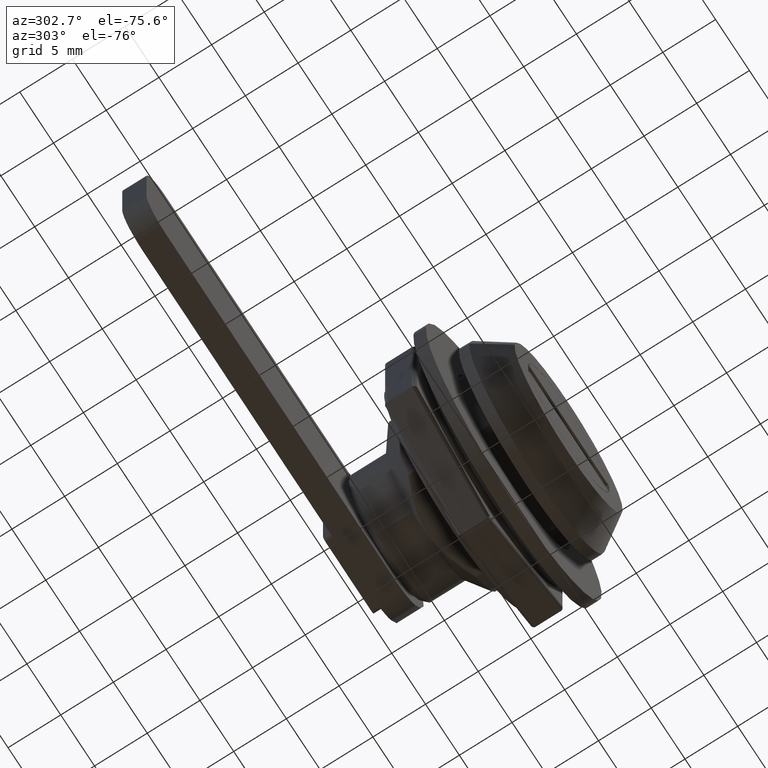
[diagram: clean part render]
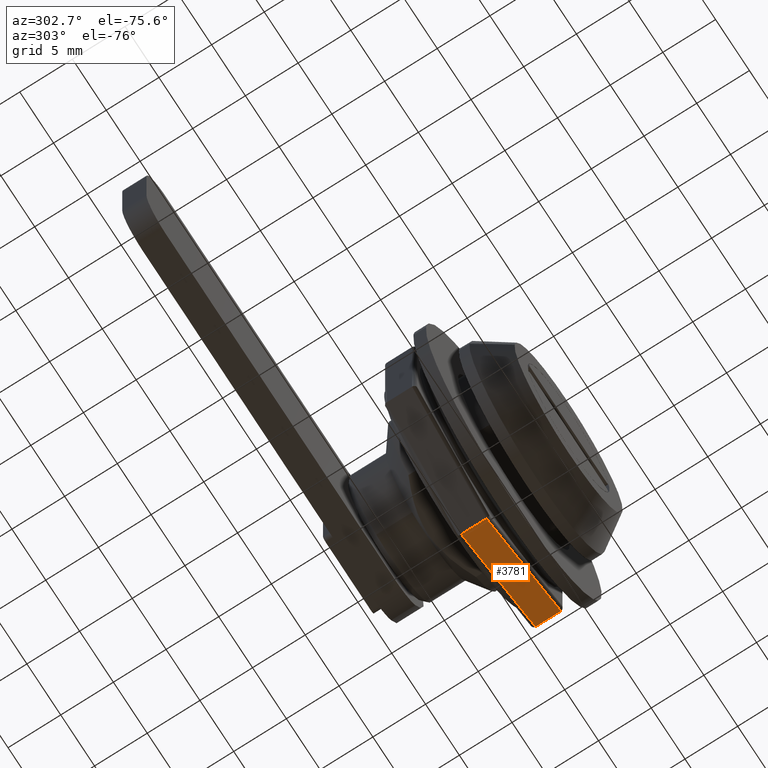
[diagram: same view with one face highlighted and labeled with its STEP entity id]
A machine part, auxiliary view. The second image highlights one B-rep face of the part: STEP entity #3781.
In plain terms, the highlighted face is a freeform B-spline surface patch.
Its self-contained STEP definition (entity closure, byte-faithful):
#3257=CARTESIAN_POINT('',(0.000000033700644,7.800000000000000,-12.701705941628740));
#3258=VERTEX_POINT('',#3257);
#3351=CARTESIAN_POINT('',(11.000000033700561,7.800000000000000,-6.350852941628760));
#3352=VERTEX_POINT('',#3351);
#3376=CARTESIAN_POINT('',(11.000000033700561,7.800000000000000,-6.350852941628760));
#3377=CARTESIAN_POINT('',(0.000000033700644,7.800000000000000,-12.701705941628740));
#3378=QUASI_UNIFORM_CURVE('',1,(#3376,#3377),.UNSPECIFIED.,.F.,.U.);
#3379=EDGE_CURVE('',#3352,#3258,#3378,.T.);
#3627=CARTESIAN_POINT('',(0.000000033700644,10.199999999999999,-12.701705941628740));
#3628=VERTEX_POINT('',#3627);
#3670=CARTESIAN_POINT('',(11.000000033700561,10.199999999999999,-6.350852941628760));
#3671=VERTEX_POINT('',#3670);
#3722=CARTESIAN_POINT('',(0.000000033700644,10.199999999999999,-12.701705941628740));
#3723=CARTESIAN_POINT('',(11.000000033700561,10.199999999999999,-6.350852941628760));
#3724=QUASI_UNIFORM_CURVE('',1,(#3722,#3723),.UNSPECIFIED.,.F.,.U.);
#3725=EDGE_CURVE('',#3628,#3671,#3724,.T.);
#3757=CARTESIAN_POINT('',(0.000000033700644,7.800000000000000,-12.701705941628740));
#3758=CARTESIAN_POINT('',(0.000000033700644,10.199999999999999,-12.701705941628740));
#3759=QUASI_UNIFORM_CURVE('',1,(#3757,#3758),.UNSPECIFIED.,.F.,.U.);
#3760=EDGE_CURVE('',#3258,#3628,#3759,.T.);
#3766=CARTESIAN_POINT('',(-0.549449962671213,7.680120215991495,-13.018931006026120));
#3767=CARTESIAN_POINT('',(11.549450308265090,7.680120215991495,-6.033627677702614));
#3768=CARTESIAN_POINT('',(-0.549449962671213,10.319879869839200,-13.018931006026120));
#3769=CARTESIAN_POINT('',(11.549450308265090,10.319879869839200,-6.033627677702614));
#3770=B_SPLINE_SURFACE_WITH_KNOTS('',1,1,((#3766,#3768),(#3767,#3769)),.UNSPECIFIED.,.F.,.F.,.U.,(2,2),(2,2),(0.0,13.970606656647020),(0.0,2.639759653847699),.UNSPECIFIED.);
#3771=ORIENTED_EDGE('',*,*,#3760,.T.);
#3772=ORIENTED_EDGE('',*,*,#3725,.T.);
#3773=CARTESIAN_POINT('',(11.000000033700561,7.800000000000000,-6.350852941628760));
#3774=CARTESIAN_POINT('',(11.000000033700561,10.199999999999999,-6.350852941628760));
#3775=QUASI_UNIFORM_CURVE('',1,(#3773,#3774),.UNSPECIFIED.,.F.,.U.);
#3776=EDGE_CURVE('',#3352,#3671,#3775,.T.);
#3777=ORIENTED_EDGE('',*,*,#3776,.F.);
#3778=ORIENTED_EDGE('',*,*,#3379,.T.);
#3779=EDGE_LOOP('',(#3771,#3772,#3777,#3778));
#3780=FACE_OUTER_BOUND('',#3779,.T.);
#3781=ADVANCED_FACE('',(#3780),#3770,.F.);